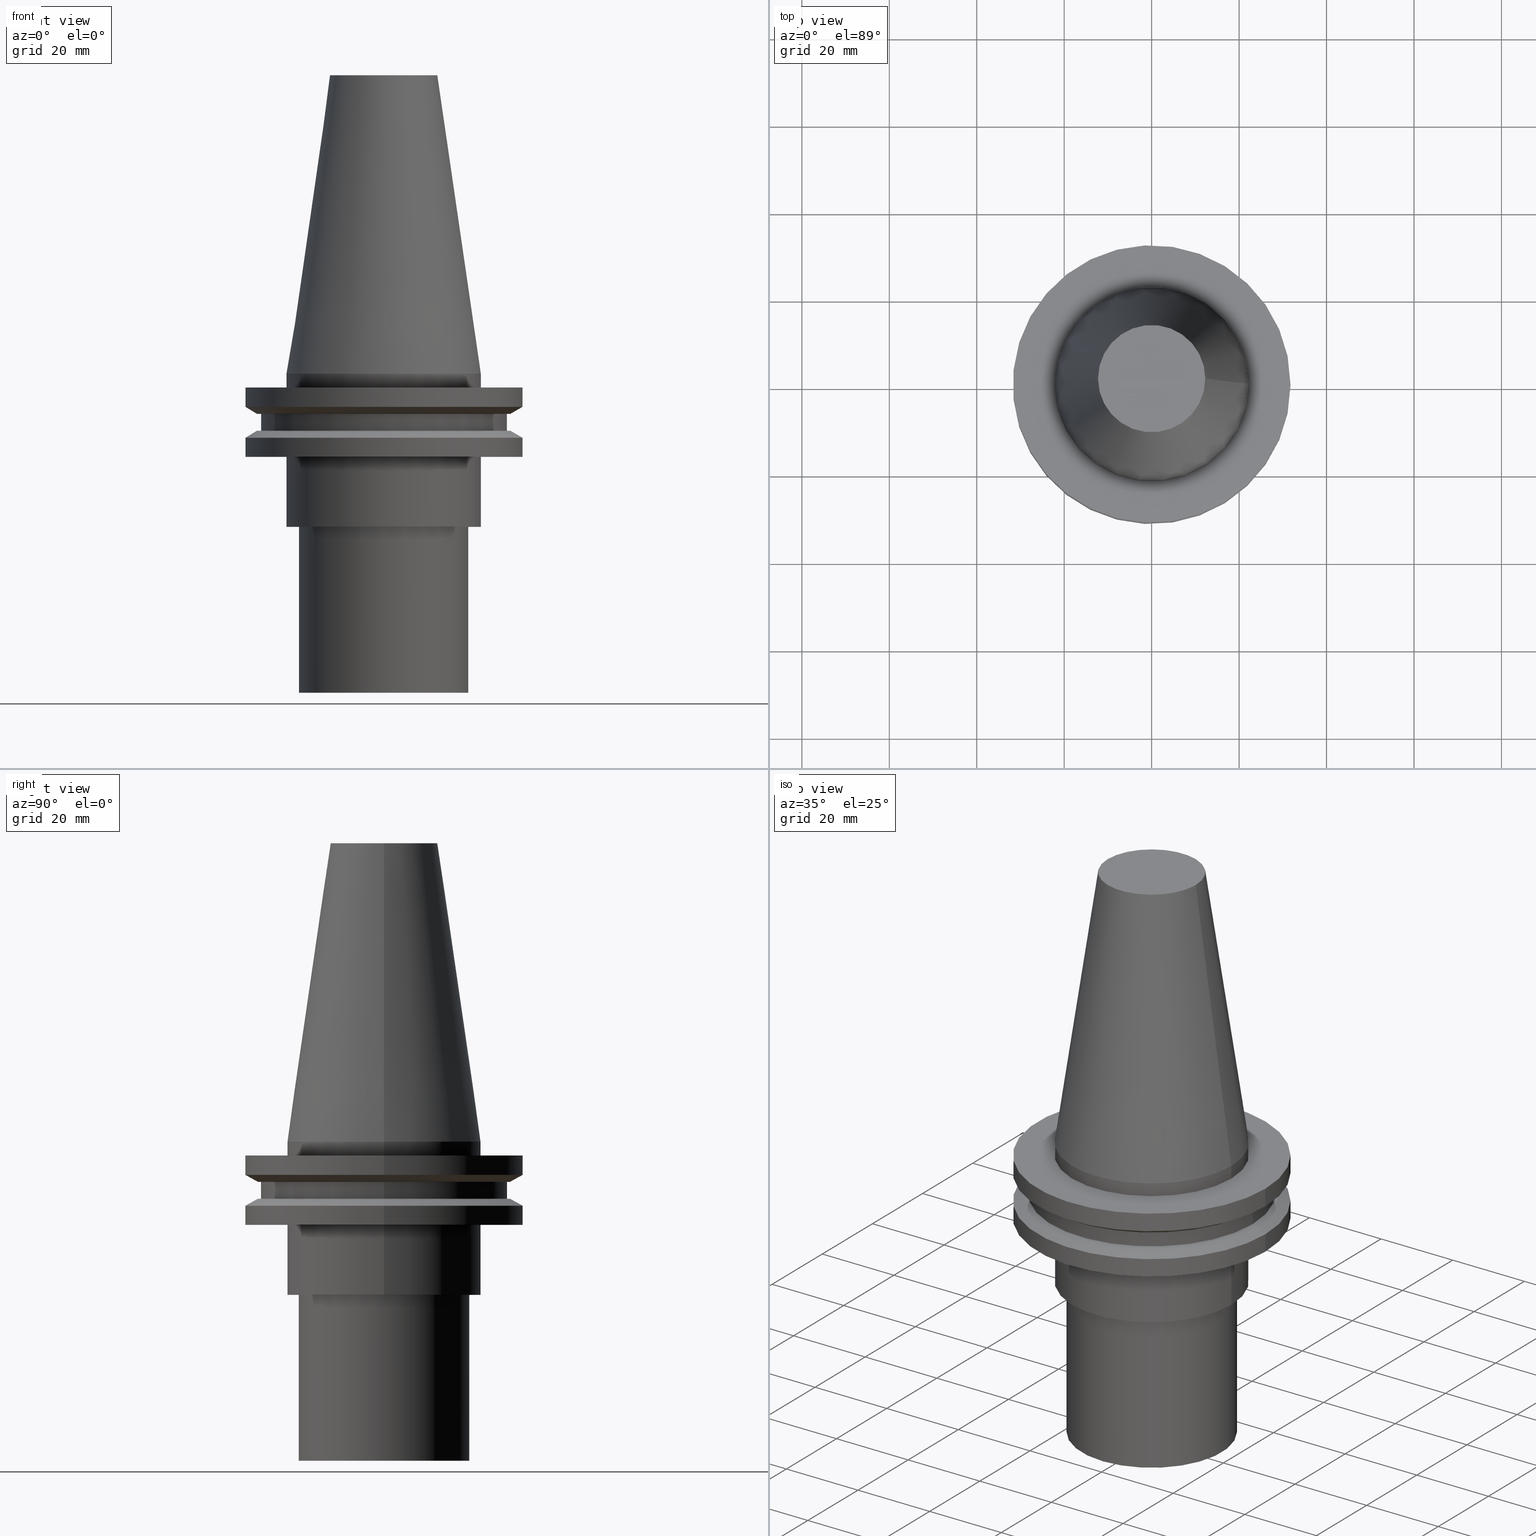
[diagram: canonical four-view strip — front | top / right | iso, engineering-drawing reading convention]
A machine part, canonical four-view strip (front | top / right | iso — engineering-drawing reading convention). The complete STEP part file that produces these views, byte-faithful:
ISO-10303-21;
HEADER;
FILE_DESCRIPTION (( 'STEP AP203' ),
    '1' );
FILE_NAME ('11.368.441.stp',
    '2022-03-09T15:12:56',
    ( '' ),
    ( '' ),
    'SwSTEP 2.0',
    'SolidWorks 2021',
    '' );
FILE_SCHEMA (( 'CONFIG_CONTROL_DESIGN' ));
ENDSEC;

DATA;
#1 = CIRCLE ( 'NONE', #285, 31.74999999999999289 ) ;
#2 = CALENDAR_DATE ( 2022, 9, 3 ) ;
#3 = AXIS2_PLACEMENT_3D ( 'NONE', #68, #358, #189 ) ;
#4 = COORDINATED_UNIVERSAL_TIME_OFFSET ( 6, 0, .BEHIND. ) ;
#5 = ORIENTED_EDGE ( 'NONE', *, *, #313, .F. ) ;
#6 = EDGE_LOOP ( 'NONE', ( #105 ) ) ;
#7 = APPROVAL_DATE_TIME ( #38, #206 ) ;
#8 = EDGE_CURVE ( 'NONE', #90, #90, #22, .T. ) ;
#9 = FACE_BOUND ( 'NONE', #70, .T. ) ;
#10 = AXIS2_PLACEMENT_3D ( 'NONE', #80, #238, #266 ) ;
#11 = EDGE_LOOP ( 'NONE', ( #226 ) ) ;
#12 = PLANE ( 'NONE',  #259 ) ;
#13 = PRODUCT_DEFINITION ( 'UNKNOWN', '', #389, #41 ) ;
#14 = FACE_BOUND ( 'NONE', #87, .T. ) ;
#15 = CALENDAR_DATE ( 2022, 9, 3 ) ;
#16 = FACE_BOUND ( 'NONE', #11, .T. ) ;
#17 = CYLINDRICAL_SURFACE ( 'NONE', #240, 19.50000000000000000 ) ;
#18 = ADVANCED_FACE ( 'NONE', ( #14, #267 ), #134, .T. ) ;
#19 = DATE_AND_TIME ( #15, #371 ) ;
#20 = DIRECTION ( 'NONE',  ( 1.000000000000000000, 0.000000000000000000, 0.000000000000000000 ) ) ;
#21 = CARTESIAN_POINT ( 'NONE',  ( 0.000000000000000000, 0.000000000000000000, -9.204999999999991189 ) ) ;
#22 = CIRCLE ( 'NONE', #43, 31.75000000000000000 ) ;
#23 = CARTESIAN_POINT ( 'NONE',  ( 31.75000000000000000, 0.000000000000000000, -3.174999999999997158 ) ) ;
#24 = PLANE ( 'NONE',  #272 ) ;
#25 = PERSON_AND_ORGANIZATION ( #33, #395 ) ;
#26 = VERTEX_POINT ( 'NONE', #305 ) ;
#27 = CARTESIAN_POINT ( 'NONE',  ( 0.000000000000000000, 28.17999999999999972, -13.05499999999999794 ) ) ;
#28 = COORDINATED_UNIVERSAL_TIME_OFFSET ( 6, 0, .BEHIND. ) ;
#29 = CARTESIAN_POINT ( 'NONE',  ( 28.17999999999999972, 0.000000000000000000, -13.05499999999999794 ) ) ;
#30 = DIRECTION ( 'NONE',  ( -0.000000000000000000, 3.227000788267069691E-17, -1.000000000000000000 ) ) ;
#31 = CIRCLE ( 'NONE', #307, 19.50000000000000000 ) ;
#32 = VERTEX_POINT ( 'NONE', #221 ) ;
#33 = PERSON ( 'UNSPECIFIED', 'UNSPECIFIED', 'UNSPECIFIED', ('UNSPECIFIED'), ('UNSPECIFIED'), ('UNSPECIFIED') ) ;
#34 = CIRCLE ( 'NONE', #218, 28.97919780457007732 ) ;
#35 = APPROVAL_STATUS ( 'not_yet_approved' ) ;
#36 = EDGE_LOOP ( 'NONE', ( #47 ) ) ;
#37 = CIRCLE ( 'NONE', #250, 22.22500000000000142 ) ;
#38 = DATE_AND_TIME ( #373, #258 ) ;
#39 = MANIFOLD_SOLID_BREP ( 'CKB', #343 ) ;
#40 = CALENDAR_DATE ( 2022, 9, 3 ) ;
#41 = DESIGN_CONTEXT ( 'detailed design', #124, 'design' ) ;
#42 = CC_DESIGN_PERSON_AND_ORGANIZATION_ASSIGNMENT ( #394, #62, ( #193 ) ) ;
#43 = AXIS2_PLACEMENT_3D ( 'NONE', #229, #55, #353 ) ;
#44 = ORIENTED_EDGE ( 'NONE', *, *, #8, .T. ) ;
#45 = CC_DESIGN_APPROVAL ( #270, ( #158 ) ) ;
#46 = DIRECTION ( 'NONE',  ( 1.000000000000000000, 0.000000000000000000, 0.000000000000000000 ) ) ;
#47 = ORIENTED_EDGE ( 'NONE', *, *, #303, .T. ) ;
#48 = DIRECTION ( 'NONE',  ( -0.000000000000000000, -0.000000000000000000, 1.000000000000000000 ) ) ;
#49 = ORIENTED_EDGE ( 'NONE', *, *, #339, .F. ) ;
#50 = DIRECTION ( 'NONE',  ( 1.000000000000000000, 0.000000000000000000, 0.000000000000000000 ) ) ;
#51 = EDGE_LOOP ( 'NONE', ( #291 ) ) ;
#52 = DATE_TIME_ROLE ( 'classification_date' ) ;
#53 = DIRECTION ( 'NONE',  ( 1.000000000000000000, 0.000000000000000000, 0.000000000000000000 ) ) ;
#54 = LOCAL_TIME ( 9, 12, 56.00000000000000000, #320 ) ;
#55 = DIRECTION ( 'NONE',  ( -0.000000000000000000, -0.000000000000000000, 1.000000000000000000 ) ) ;
#56 = DIRECTION ( 'NONE',  ( -0.000000000000000000, -0.000000000000000000, 1.000000000000000000 ) ) ;
#57 = CARTESIAN_POINT ( 'NONE',  ( 0.000000000000000000, 0.000000000000000000, -13.05499999999999794 ) ) ;
#58 = AXIS2_PLACEMENT_3D ( 'NONE', #364, #274, #391 ) ;
#59 = APPROVAL_STATUS ( 'not_yet_approved' ) ;
#60 = DIRECTION ( 'NONE',  ( 0.000000000000000000, 1.000000000000000000, 0.000000000000000000 ) ) ;
#61 = ADVANCED_FACE ( 'NONE', ( #208, #324 ), #17, .T. ) ;
#62 = PERSON_AND_ORGANIZATION_ROLE ( 'design_owner' ) ;
#63 = AXIS2_PLACEMENT_3D ( 'NONE', #174, #323, #380 ) ;
#64 = DIRECTION ( 'NONE',  ( 1.000000000000000000, 0.000000000000000000, 0.000000000000000000 ) ) ;
#65 = VERTEX_POINT ( 'NONE', #390 ) ;
#66 = CARTESIAN_POINT ( 'NONE',  ( 0.000000000000000000, 22.22499999999999787, -35.04999999999999716 ) ) ;
#67 = CONICAL_SURFACE ( 'NONE', #230, 22.22500000000000142, 0.1448138465474119174 ) ;
#68 = CARTESIAN_POINT ( 'NONE',  ( 0.000000000000000000, 0.000000000000000000, 68.25000000000000000 ) ) ;
#69 = PRODUCT_DEFINITION_SHAPE ( 'NONE', 'NONE',  #13 ) ;
#70 = EDGE_LOOP ( 'NONE', ( #223 ) ) ;
#71 = AXIS2_PLACEMENT_3D ( 'NONE', #116, #118, #82 ) ;
#72 = APPROVAL_DATE_TIME ( #76, #340 ) ;
#73 = CIRCLE ( 'NONE', #311, 28.17999999999999972 ) ;
#74 = AXIS2_PLACEMENT_3D ( 'NONE', #99, #276, #60 ) ;
#75 = FACE_OUTER_BOUND ( 'NONE', #141, .T. ) ;
#76 = DATE_AND_TIME ( #2, #314 ) ;
#77 = CYLINDRICAL_SURFACE ( 'NONE', #3, 31.75000000000000000 ) ;
#78 = ORIENTED_EDGE ( 'NONE', *, *, #168, .T. ) ;
#79 = CC_DESIGN_APPROVAL ( #206, ( #13 ) ) ;
#80 = CARTESIAN_POINT ( 'NONE',  ( 0.000000000000000000, 0.000000000000000000, -19.04999999999999716 ) ) ;
#81 = EDGE_LOOP ( 'NONE', ( #381 ) ) ;
#82 = DIRECTION ( 'NONE',  ( -1.000000000000000000, 0.000000000000000000, -0.000000000000000000 ) ) ;
#83 = AXIS2_PLACEMENT_3D ( 'NONE', #213, #184, #335 ) ;
#84 = ORIENTED_EDGE ( 'NONE', *, *, #190, .F. ) ;
#85 = APPROVAL_ROLE ( '' ) ;
#86 = CYLINDRICAL_SURFACE ( 'NONE', #101, 22.22500000000000142 ) ;
#87 = EDGE_LOOP ( 'NONE', ( #287 ) ) ;
#88 = DIRECTION ( 'NONE',  ( -0.000000000000000000, -0.000000000000000000, 1.000000000000000000 ) ) ;
#89 = DIRECTION ( 'NONE',  ( -0.000000000000000000, -0.000000000000000000, 1.000000000000000000 ) ) ;
#90 = VERTEX_POINT ( 'NONE', #165 ) ;
#91 = PLANE ( 'NONE',  #293 ) ;
#92 = ADVANCED_FACE ( 'NONE', ( #383, #75 ), #200, .T. ) ;
#93 = CONICAL_SURFACE ( 'NONE', #384, 28.97919780457007732, 1.047197551196598297 ) ;
#94 = COORDINATED_UNIVERSAL_TIME_OFFSET ( 6, 0, .BEHIND. ) ;
#95 = CARTESIAN_POINT ( 'NONE',  ( 0.000000000000000000, 19.50000000000000000, -35.04999999999999716 ) ) ;
#96 = FACE_BOUND ( 'NONE', #6, .T. ) ;
#97 = ADVANCED_FACE ( 'NONE', ( #386, #251 ), #91, .F. ) ;
#98 = MECHANICAL_CONTEXT ( 'NONE', #107, 'mechanical' ) ;
#99 = CARTESIAN_POINT ( 'NONE',  ( 0.000000000000000000, 1.224646799147352862E-15, -73.00000000000000000 ) ) ;
#100 = CARTESIAN_POINT ( 'NONE',  ( 22.22500000000000142, 0.000000000000000000, 0.000000000000000000 ) ) ;
#101 = AXIS2_PLACEMENT_3D ( 'NONE', #209, #325, #290 ) ;
#102 = ORIENTED_EDGE ( 'NONE', *, *, #168, .F. ) ;
#103 = PERSON_AND_ORGANIZATION_ROLE ( 'design_supplier' ) ;
#104 = CC_DESIGN_SECURITY_CLASSIFICATION ( #158, ( #389 ) ) ;
#105 = ORIENTED_EDGE ( 'NONE', *, *, #130, .F. ) ;
#106 = EDGE_CURVE ( 'NONE', #219, #219, #31, .T. ) ;
#107 = APPLICATION_CONTEXT ( 'configuration controlled 3d designs of mechanical parts and assemblies' ) ;
#108 = DIRECTION ( 'NONE',  ( 0.000000000000000000, 0.000000000000000000, -1.000000000000000000 ) ) ;
#109 = AXIS2_PLACEMENT_3D ( 'NONE', #220, #245, #64 ) ;
#110 = DIRECTION ( 'NONE',  ( -0.000000000000000000, -0.000000000000000000, 1.000000000000000000 ) ) ;
#111 = EDGE_LOOP ( 'NONE', ( #145 ) ) ;
#112 = FACE_OUTER_BOUND ( 'NONE', #173, .T. ) ;
#113 = EDGE_LOOP ( 'NONE', ( #5 ) ) ;
#114 = PERSON_AND_ORGANIZATION_ROLE ( 'creator' ) ;
#115 = APPROVAL_PERSON_ORGANIZATION ( #350, #340, #345 ) ;
#116 = CARTESIAN_POINT ( 'NONE',  ( 0.000000000000000000, 12.27178102086201150, 68.25000000000000000 ) ) ;
#117 = EDGE_LOOP ( 'NONE', ( #261 ) ) ;
#118 = DIRECTION ( 'NONE',  ( 0.000000000000000000, 0.000000000000000000, -1.000000000000000000 ) ) ;
#119 = AXIS2_PLACEMENT_3D ( 'NONE', #253, #299, #155 ) ;
#120 = EDGE_LOOP ( 'NONE', ( #349 ) ) ;
#121 = PERSON_AND_ORGANIZATION_ROLE ( 'classification_officer' ) ;
#122 = DIRECTION ( 'NONE',  ( -1.000000000000000000, 0.000000000000000000, -0.000000000000000000 ) ) ;
#123 = DIRECTION ( 'NONE',  ( 0.000000000000000000, 1.000000000000000000, 0.000000000000000000 ) ) ;
#124 = APPLICATION_CONTEXT ( 'configuration controlled 3d designs of mechanical parts and assemblies' ) ;
#125 = DIRECTION ( 'NONE',  ( -0.000000000000000000, 3.227000788267069691E-17, -1.000000000000000000 ) ) ;
#126 = CARTESIAN_POINT ( 'NONE',  ( 12.27178102086201150, 0.000000000000000000, 68.25000000000000000 ) ) ;
#127 = PLANE ( 'NONE',  #109 ) ;
#128 = VERTEX_POINT ( 'NONE', #156 ) ;
#129 = DIRECTION ( 'NONE',  ( 0.000000000000000000, 0.000000000000000000, -1.000000000000000000 ) ) ;
#130 = EDGE_CURVE ( 'NONE', #387, #387, #256, .T. ) ;
#131 = VERTEX_POINT ( 'NONE', #365 ) ;
#132 = ADVANCED_BREP_SHAPE_REPRESENTATION ( '11.368.441', ( #39, #178 ), #288 ) ;
#133 = CARTESIAN_POINT ( 'NONE',  ( 0.000000000000000000, 0.000000000000000000, 0.000000000000000000 ) ) ;
#134 = CONICAL_SURFACE ( 'NONE', #170, 31.75000000000000000, 1.047197551196597853 ) ;
#135 = EDGE_LOOP ( 'NONE', ( #379 ) ) ;
#136 = ORIENTED_EDGE ( 'NONE', *, *, #190, .T. ) ;
#137 = CIRCLE ( 'NONE', #222, 28.97919780457008088 ) ;
#138 = EDGE_LOOP ( 'NONE', ( #297 ) ) ;
#139 = AXIS2_PLACEMENT_3D ( 'NONE', #273, #385, #122 ) ;
#140 = DIRECTION ( 'NONE',  ( -0.000000000000000000, -0.000000000000000000, 1.000000000000000000 ) ) ;
#141 = EDGE_LOOP ( 'NONE', ( #376 ) ) ;
#142 = SECURITY_CLASSIFICATION_LEVEL ( 'unclassified' ) ;
#143 = AXIS2_PLACEMENT_3D ( 'NONE', #295, #110, #262 ) ;
#144 = FACE_OUTER_BOUND ( 'NONE', #342, .T. ) ;
#145 = ORIENTED_EDGE ( 'NONE', *, *, #268, .F. ) ;
#146 = DATE_TIME_ROLE ( 'creation_date' ) ;
#147 = CARTESIAN_POINT ( 'NONE',  ( 0.000000000000000000, 0.000000000000000000, 68.25000000000000000 ) ) ;
#148 = EDGE_LOOP ( 'NONE', ( #49 ) ) ;
#149 = APPROVAL_DATE_TIME ( #363, #270 ) ;
#150 = DIRECTION ( 'NONE',  ( -0.000000000000000000, -0.000000000000000000, 1.000000000000000000 ) ) ;
#151 = EDGE_CURVE ( 'NONE', #131, #131, #137, .T. ) ;
#152 = CARTESIAN_POINT ( 'NONE',  ( 0.000000000000000000, 1.224646799147352862E-15, -73.00000000000000000 ) ) ;
#153 = PLANE ( 'NONE',  #139 ) ;
#154 = AXIS2_PLACEMENT_3D ( 'NONE', #27, #129, #217 ) ;
#155 = DIRECTION ( 'NONE',  ( 1.000000000000000000, 0.000000000000000000, 0.000000000000000000 ) ) ;
#156 = CARTESIAN_POINT ( 'NONE',  ( 22.22499999999999787, 0.000000000000000000, -35.04999999999999716 ) ) ;
#157 = CARTESIAN_POINT ( 'NONE',  ( 0.000000000000000000, 19.50000000000000000, -73.00000000000000000 ) ) ;
#158 = SECURITY_CLASSIFICATION ( '', '', #142 ) ;
#159 = FACE_OUTER_BOUND ( 'NONE', #148, .T. ) ;
#160 = PERSON_AND_ORGANIZATION ( #33, #395 ) ;
#161 = CARTESIAN_POINT ( 'NONE',  ( 0.000000000000000000, 0.000000000000000000, 0.000000000000000000 ) ) ;
#162 =( NAMED_UNIT ( * ) PLANE_ANGLE_UNIT ( ) SI_UNIT ( $, .RADIAN. ) );
#163 = CC_DESIGN_DATE_AND_TIME_ASSIGNMENT ( #19, #52, ( #158 ) ) ;
#164 = CC_DESIGN_PERSON_AND_ORGANIZATION_ASSIGNMENT ( #292, #234, ( #13 ) ) ;
#165 = CARTESIAN_POINT ( 'NONE',  ( 31.75000000000000000, 0.000000000000000000, -14.65472339340266572 ) ) ;
#166 = CIRCLE ( 'NONE', #336, 28.17999999999999972 ) ;
#167 = ADVANCED_FACE ( 'NONE', ( #188 ), #24, .T. ) ;
#168 = EDGE_CURVE ( 'NONE', #361, #361, #166, .T. ) ;
#169 = EDGE_CURVE ( 'NONE', #194, #194, #37, .T. ) ;
#170 = AXIS2_PLACEMENT_3D ( 'NONE', #372, #108, #355 ) ;
#171 = ORIENTED_EDGE ( 'NONE', *, *, #227, .T. ) ;
#172 = DIRECTION ( 'NONE',  ( -0.000000000000000000, -0.000000000000000000, 1.000000000000000000 ) ) ;
#173 = EDGE_LOOP ( 'NONE', ( #102 ) ) ;
#174 = CARTESIAN_POINT ( 'NONE',  ( 0.000000000000000000, 0.000000000000000000, -7.605276606597335842 ) ) ;
#175 = ORIENTED_EDGE ( 'NONE', *, *, #169, .F. ) ;
#176 = FACE_OUTER_BOUND ( 'NONE', #117, .T. ) ;
#177 = EDGE_LOOP ( 'NONE', ( #319 ) ) ;
#178 = AXIS2_PLACEMENT_3D ( 'NONE', #133, #255, #367 ) ;
#179 = FACE_OUTER_BOUND ( 'NONE', #120, .T. ) ;
#180 = DIRECTION ( 'NONE',  ( 1.000000000000000000, 0.000000000000000000, 0.000000000000000000 ) ) ;
#181 = FACE_OUTER_BOUND ( 'NONE', #242, .T. ) ;
#182 = AXIS2_PLACEMENT_3D ( 'NONE', #321, #48, #53 ) ;
#183 = PRODUCT_RELATED_PRODUCT_CATEGORY ( 'detail', '', ( #193 ) ) ;
#184 = DIRECTION ( 'NONE',  ( -0.000000000000000000, -0.000000000000000000, 1.000000000000000000 ) ) ;
#185 =( LENGTH_UNIT ( ) NAMED_UNIT ( * ) SI_UNIT ( .MILLI., .METRE. ) );
#186 = FACE_BOUND ( 'NONE', #177, .T. ) ;
#187 = APPLICATION_PROTOCOL_DEFINITION ( 'international standard', 'config_control_design', 1994, #124 ) ;
#188 = FACE_OUTER_BOUND ( 'NONE', #211, .T. ) ;
#189 = DIRECTION ( 'NONE',  ( 1.000000000000000000, 0.000000000000000000, 0.000000000000000000 ) ) ;
#190 = EDGE_CURVE ( 'NONE', #65, #65, #360, .T. ) ;
#191 = CIRCLE ( 'NONE', #10, 22.22500000000000142 ) ;
#192 = CARTESIAN_POINT ( 'NONE',  ( 28.17999999999999972, 0.000000000000000000, -9.204999999999991189 ) ) ;
#193 = PRODUCT ( '11.368.441', '11.368.441', '', ( #98 ) ) ;
#194 = VERTEX_POINT ( 'NONE', #100 ) ;
#195 = EDGE_LOOP ( 'NONE', ( #175 ) ) ;
#196 = CIRCLE ( 'NONE', #63, 31.75000000000000000 ) ;
#197 = CC_DESIGN_DATE_AND_TIME_ASSIGNMENT ( #286, #146, ( #13 ) ) ;
#198 = ADVANCED_FACE ( 'NONE', ( #96, #215 ), #67, .T. ) ;
#199 = EDGE_LOOP ( 'NONE', ( #233 ) ) ;
#200 = CYLINDRICAL_SURFACE ( 'NONE', #58, 31.75000000000000000 ) ;
#201 = PERSON_AND_ORGANIZATION ( #33, #395 ) ;
#202 = FACE_OUTER_BOUND ( 'NONE', #135, .T. ) ;
#203 = EDGE_LOOP ( 'NONE', ( #260 ) ) ;
#204 = DIRECTION ( 'NONE',  ( 1.000000000000000000, 0.000000000000000000, 0.000000000000000000 ) ) ;
#205 = EDGE_LOOP ( 'NONE', ( #289 ) ) ;
#206 = APPROVAL ( #280, 'UNSPECIFIED' ) ;
#207 = CARTESIAN_POINT ( 'NONE',  ( 0.000000000000000000, 0.000000000000000000, -9.205000000000005400 ) ) ;
#208 = FACE_OUTER_BOUND ( 'NONE', #51, .T. ) ;
#209 = CARTESIAN_POINT ( 'NONE',  ( 0.000000000000000000, 0.000000000000000000, 68.25000000000000000 ) ) ;
#210 = ADVANCED_FACE ( 'NONE', ( #186, #304 ), #393, .F. ) ;
#211 = EDGE_LOOP ( 'NONE', ( #136 ) ) ;
#212 = DIRECTION ( 'NONE',  ( 1.000000000000000000, 0.000000000000000000, 0.000000000000000000 ) ) ;
#213 = CARTESIAN_POINT ( 'NONE',  ( 0.000000000000000000, 0.000000000000000000, 68.25000000000000000 ) ) ;
#214 = VERTEX_POINT ( 'NONE', #337 ) ;
#215 = FACE_OUTER_BOUND ( 'NONE', #203, .T. ) ;
#216 = SHAPE_DEFINITION_REPRESENTATION ( #69, #132 ) ;
#217 = DIRECTION ( 'NONE',  ( -1.000000000000000000, 0.000000000000000000, -0.000000000000000000 ) ) ;
#218 = AXIS2_PLACEMENT_3D ( 'NONE', #207, #318, #269 ) ;
#219 = VERTEX_POINT ( 'NONE', #95 ) ;
#220 = CARTESIAN_POINT ( 'NONE',  ( 0.000000000000000000, 28.97919780457007732, -9.204999999999996518 ) ) ;
#221 = CARTESIAN_POINT ( 'NONE',  ( 22.22500000000000142, 0.000000000000000000, -19.04999999999999716 ) ) ;
#222 = AXIS2_PLACEMENT_3D ( 'NONE', #57, #359, #388 ) ;
#223 = ORIENTED_EDGE ( 'NONE', *, *, #268, .T. ) ;
#224 = LOCAL_TIME ( 9, 12, 56.00000000000000000, #28 ) ;
#225 = ADVANCED_FACE ( 'NONE', ( #159, #279 ), #127, .F. ) ;
#226 = ORIENTED_EDGE ( 'NONE', *, *, #339, .T. ) ;
#227 = EDGE_CURVE ( 'NONE', #254, #254, #329, .T. ) ;
#228 = APPROVAL_PERSON_ORGANIZATION ( #160, #206, #392 ) ;
#229 = CARTESIAN_POINT ( 'NONE',  ( 0.000000000000000000, 0.000000000000000000, -14.65472339340266572 ) ) ;
#230 = AXIS2_PLACEMENT_3D ( 'NONE', #328, #248, #331 ) ;
#231 = CARTESIAN_POINT ( 'NONE',  ( 0.000000000000000000, 0.000000000000000000, -19.04999999999999716 ) ) ;
#232 = ADVANCED_FACE ( 'NONE', ( #144, #9 ), #12, .F. ) ;
#233 = ORIENTED_EDGE ( 'NONE', *, *, #130, .T. ) ;
#234 = PERSON_AND_ORGANIZATION_ROLE ( 'creator' ) ;
#235 = CARTESIAN_POINT ( 'NONE',  ( 0.000000000000000000, 0.000000000000000000, -9.205000000000005400 ) ) ;
#236 = ADVANCED_FACE ( 'NONE', ( #301, #16 ), #93, .T. ) ;
#237 = ORIENTED_EDGE ( 'NONE', *, *, #282, .F. ) ;
#238 = DIRECTION ( 'NONE',  ( -0.000000000000000000, -0.000000000000000000, 1.000000000000000000 ) ) ;
#239 = ORIENTED_EDGE ( 'NONE', *, *, #303, .F. ) ;
#240 = AXIS2_PLACEMENT_3D ( 'NONE', #152, #326, #271 ) ;
#241 = CYLINDRICAL_SURFACE ( 'NONE', #316, 28.17999999999999972 ) ;
#242 = EDGE_LOOP ( 'NONE', ( #171 ) ) ;
#243 = PERSON_AND_ORGANIZATION ( #33, #395 ) ;
#244 = FACE_OUTER_BOUND ( 'NONE', #195, .T. ) ;
#245 = DIRECTION ( 'NONE',  ( 0.000000000000000000, -0.000000000000000000, 1.000000000000000000 ) ) ;
#246 = AXIS2_PLACEMENT_3D ( 'NONE', #356, #88, #212 ) ;
#247 = CC_DESIGN_PERSON_AND_ORGANIZATION_ASSIGNMENT ( #25, #121, ( #158 ) ) ;
#248 = DIRECTION ( 'NONE',  ( 0.000000000000000000, 0.000000000000000000, -1.000000000000000000 ) ) ;
#249 = CALENDAR_DATE ( 2022, 9, 3 ) ;
#250 = AXIS2_PLACEMENT_3D ( 'NONE', #161, #89, #333 ) ;
#251 = FACE_OUTER_BOUND ( 'NONE', #317, .T. ) ;
#252 = ADVANCED_FACE ( 'NONE', ( #352, #377 ), #86, .T. ) ;
#253 = CARTESIAN_POINT ( 'NONE',  ( 0.000000000000000000, 0.000000000000000000, -3.174999999999997158 ) ) ;
#254 = VERTEX_POINT ( 'NONE', #308 ) ;
#255 = DIRECTION ( 'NONE',  ( 0.000000000000000000, 0.000000000000000000, 1.000000000000000000 ) ) ;
#256 = CIRCLE ( 'NONE', #83, 12.27178102086201150 ) ;
#257 = PERSON_AND_ORGANIZATION ( #33, #395 ) ;
#258 = LOCAL_TIME ( 9, 12, 56.00000000000000000, #334 ) ;
#259 = AXIS2_PLACEMENT_3D ( 'NONE', #264, #296, #348 ) ;
#260 = ORIENTED_EDGE ( 'NONE', *, *, #169, .T. ) ;
#261 = ORIENTED_EDGE ( 'NONE', *, *, #341, .T. ) ;
#262 = DIRECTION ( 'NONE',  ( 1.000000000000000000, 0.000000000000000000, 0.000000000000000000 ) ) ;
#263 = EDGE_LOOP ( 'NONE', ( #78 ) ) ;
#264 = CARTESIAN_POINT ( 'NONE',  ( 0.000000000000000000, 31.74999999999999289, -19.04999999999999716 ) ) ;
#265 = EDGE_LOOP ( 'NONE', ( #368 ) ) ;
#266 = DIRECTION ( 'NONE',  ( 1.000000000000000000, 0.000000000000000000, 0.000000000000000000 ) ) ;
#267 = FACE_OUTER_BOUND ( 'NONE', #322, .T. ) ;
#268 = EDGE_CURVE ( 'NONE', #32, #32, #191, .T. ) ;
#269 = DIRECTION ( 'NONE',  ( 1.000000000000000000, 0.000000000000000000, 0.000000000000000000 ) ) ;
#270 = APPROVAL ( #59, 'UNSPECIFIED' ) ;
#271 = DIRECTION ( 'NONE',  ( 0.000000000000000000, 1.000000000000000000, 0.000000000000000000 ) ) ;
#272 = AXIS2_PLACEMENT_3D ( 'NONE', #157, #30, #281 ) ;
#273 = CARTESIAN_POINT ( 'NONE',  ( 0.000000000000000000, 31.75000000000000000, -3.174999999999999378 ) ) ;
#274 = DIRECTION ( 'NONE',  ( -0.000000000000000000, -0.000000000000000000, 1.000000000000000000 ) ) ;
#275 = VERTEX_POINT ( 'NONE', #23 ) ;
#276 = DIRECTION ( 'NONE',  ( -0.000000000000000000, 3.227000788267069691E-17, -1.000000000000000000 ) ) ;
#277 = APPROVAL_PERSON_ORGANIZATION ( #243, #270, #85 ) ;
#278 = ADVANCED_FACE ( 'NONE', ( #112, #176 ), #241, .T. ) ;
#279 = FACE_BOUND ( 'NONE', #263, .T. ) ;
#280 = APPROVAL_STATUS ( 'not_yet_approved' ) ;
#281 = DIRECTION ( 'NONE',  ( 0.000000000000000000, 1.000000000000000000, 3.227000788267069691E-17 ) ) ;
#282 = EDGE_CURVE ( 'NONE', #128, #128, #300, .T. ) ;
#283 = CC_DESIGN_APPROVAL ( #340, ( #389 ) ) ;
#284 =( NAMED_UNIT ( * ) SI_UNIT ( $, .STERADIAN. ) SOLID_ANGLE_UNIT ( ) );
#285 = AXIS2_PLACEMENT_3D ( 'NONE', #231, #140, #20 ) ;
#286 = DATE_AND_TIME ( #40, #54 ) ;
#287 = ORIENTED_EDGE ( 'NONE', *, *, #151, .F. ) ;
#288 =( GEOMETRIC_REPRESENTATION_CONTEXT ( 3 ) GLOBAL_UNCERTAINTY_ASSIGNED_CONTEXT ( ( #294 ) ) GLOBAL_UNIT_ASSIGNED_CONTEXT ( ( #185, #162, #284 ) ) REPRESENTATION_CONTEXT ( 'NONE', 'WORKASPACE' ) );
#289 = ORIENTED_EDGE ( 'NONE', *, *, #106, .F. ) ;
#290 = DIRECTION ( 'NONE',  ( 1.000000000000000000, 0.000000000000000000, 0.000000000000000000 ) ) ;
#291 = ORIENTED_EDGE ( 'NONE', *, *, #106, .T. ) ;
#292 = PERSON_AND_ORGANIZATION ( #33, #395 ) ;
#293 = AXIS2_PLACEMENT_3D ( 'NONE', #66, #357, #306 ) ;
#294 = UNCERTAINTY_MEASURE_WITH_UNIT (LENGTH_MEASURE( 1.000000000000000082E-05 ), #185, 'distance_accuracy_value', 'NONE');
#295 = CARTESIAN_POINT ( 'NONE',  ( 0.000000000000000000, 0.000000000000000000, -3.174999999999997158 ) ) ;
#296 = DIRECTION ( 'NONE',  ( 0.000000000000000000, -0.000000000000000000, 1.000000000000000000 ) ) ;
#297 = ORIENTED_EDGE ( 'NONE', *, *, #151, .T. ) ;
#298 = PLANE ( 'NONE',  #71 ) ;
#299 = DIRECTION ( 'NONE',  ( -0.000000000000000000, -0.000000000000000000, 1.000000000000000000 ) ) ;
#300 = CIRCLE ( 'NONE', #182, 22.22499999999999787 ) ;
#301 = FACE_OUTER_BOUND ( 'NONE', #113, .T. ) ;
#302 = CARTESIAN_POINT ( 'NONE',  ( 0.000000000000000000, 0.000000000000000000, -35.04999999999999716 ) ) ;
#303 = EDGE_CURVE ( 'NONE', #26, #26, #1, .T. ) ;
#304 = FACE_OUTER_BOUND ( 'NONE', #138, .T. ) ;
#305 = CARTESIAN_POINT ( 'NONE',  ( 31.74999999999999289, 0.000000000000000000, -19.04999999999999716 ) ) ;
#306 = DIRECTION ( 'NONE',  ( 1.000000000000000000, 0.000000000000000000, 0.000000000000000000 ) ) ;
#307 = AXIS2_PLACEMENT_3D ( 'NONE', #302, #125, #123 ) ;
#308 = CARTESIAN_POINT ( 'NONE',  ( 22.22500000000000142, 0.000000000000000000, -3.174999999999997158 ) ) ;
#309 = EDGE_CURVE ( 'NONE', #275, #275, #312, .T. ) ;
#310 = CARTESIAN_POINT ( 'NONE',  ( 28.97919780457007732, 0.000000000000000000, -9.205000000000005400 ) ) ;
#311 = AXIS2_PLACEMENT_3D ( 'NONE', #382, #56, #50 ) ;
#312 = CIRCLE ( 'NONE', #143, 31.75000000000000000 ) ;
#313 = EDGE_CURVE ( 'NONE', #214, #214, #196, .T. ) ;
#314 = LOCAL_TIME ( 9, 12, 56.00000000000000000, #4 ) ;
#315 = ADVANCED_FACE ( 'NONE', ( #346 ), #298, .F. ) ;
#316 = AXIS2_PLACEMENT_3D ( 'NONE', #147, #172, #204 ) ;
#317 = EDGE_LOOP ( 'NONE', ( #237 ) ) ;
#318 = DIRECTION ( 'NONE',  ( -0.000000000000000000, -0.000000000000000000, 1.000000000000000000 ) ) ;
#319 = ORIENTED_EDGE ( 'NONE', *, *, #341, .F. ) ;
#320 = COORDINATED_UNIVERSAL_TIME_OFFSET ( 6, 0, .BEHIND. ) ;
#321 = CARTESIAN_POINT ( 'NONE',  ( 0.000000000000000000, 0.000000000000000000, -35.04999999999999716 ) ) ;
#322 = EDGE_LOOP ( 'NONE', ( #44 ) ) ;
#323 = DIRECTION ( 'NONE',  ( -0.000000000000000000, -0.000000000000000000, 1.000000000000000000 ) ) ;
#324 = FACE_OUTER_BOUND ( 'NONE', #369, .T. ) ;
#325 = DIRECTION ( 'NONE',  ( -0.000000000000000000, -0.000000000000000000, 1.000000000000000000 ) ) ;
#326 = DIRECTION ( 'NONE',  ( -0.000000000000000000, 3.227000788267069691E-17, -1.000000000000000000 ) ) ;
#327 = FACE_OUTER_BOUND ( 'NONE', #36, .T. ) ;
#328 = CARTESIAN_POINT ( 'NONE',  ( 0.000000000000000000, 0.000000000000000000, 0.000000000000000000 ) ) ;
#329 = CIRCLE ( 'NONE', #119, 22.22500000000000142 ) ;
#330 = VERTEX_POINT ( 'NONE', #310 ) ;
#331 = DIRECTION ( 'NONE',  ( -1.000000000000000000, 0.000000000000000000, 0.000000000000000000 ) ) ;
#332 = APPLICATION_PROTOCOL_DEFINITION ( 'international standard', 'config_control_design', 1994, #107 ) ;
#333 = DIRECTION ( 'NONE',  ( 1.000000000000000000, 0.000000000000000000, 0.000000000000000000 ) ) ;
#334 = COORDINATED_UNIVERSAL_TIME_OFFSET ( 6, 0, .BEHIND. ) ;
#335 = DIRECTION ( 'NONE',  ( 1.000000000000000000, 0.000000000000000000, 0.000000000000000000 ) ) ;
#336 = AXIS2_PLACEMENT_3D ( 'NONE', #21, #362, #180 ) ;
#337 = CARTESIAN_POINT ( 'NONE',  ( 31.75000000000000000, 0.000000000000000000, -7.605276606597335842 ) ) ;
#338 = VERTEX_POINT ( 'NONE', #29 ) ;
#339 = EDGE_CURVE ( 'NONE', #330, #330, #34, .T. ) ;
#340 = APPROVAL ( #35, 'UNSPECIFIED' ) ;
#341 = EDGE_CURVE ( 'NONE', #338, #338, #73, .T. ) ;
#342 = EDGE_LOOP ( 'NONE', ( #239 ) ) ;
#343 = CLOSED_SHELL ( 'NONE', ( #198, #315, #97, #252, #232, #378, #18, #210, #278, #225, #236, #92, #351, #370, #61, #167 ) ) ;
#344 = ORIENTED_EDGE ( 'NONE', *, *, #227, .F. ) ;
#345 = APPROVAL_ROLE ( '' ) ;
#346 = FACE_OUTER_BOUND ( 'NONE', #199, .T. ) ;
#347 = EDGE_LOOP ( 'NONE', ( #344 ) ) ;
#348 = DIRECTION ( 'NONE',  ( 1.000000000000000000, 0.000000000000000000, 0.000000000000000000 ) ) ;
#349 = ORIENTED_EDGE ( 'NONE', *, *, #309, .T. ) ;
#350 = PERSON_AND_ORGANIZATION ( #33, #395 ) ;
#351 = ADVANCED_FACE ( 'NONE', ( #354, #179 ), #153, .F. ) ;
#352 = FACE_OUTER_BOUND ( 'NONE', #111, .T. ) ;
#353 = DIRECTION ( 'NONE',  ( 1.000000000000000000, 0.000000000000000000, 0.000000000000000000 ) ) ;
#354 = FACE_BOUND ( 'NONE', #347, .T. ) ;
#355 = DIRECTION ( 'NONE',  ( -1.000000000000000000, 0.000000000000000000, 0.000000000000000000 ) ) ;
#356 = CARTESIAN_POINT ( 'NONE',  ( 0.000000000000000000, 0.000000000000000000, 68.25000000000000000 ) ) ;
#357 = DIRECTION ( 'NONE',  ( 0.000000000000000000, -0.000000000000000000, 1.000000000000000000 ) ) ;
#358 = DIRECTION ( 'NONE',  ( -0.000000000000000000, -0.000000000000000000, 1.000000000000000000 ) ) ;
#359 = DIRECTION ( 'NONE',  ( -0.000000000000000000, -0.000000000000000000, 1.000000000000000000 ) ) ;
#360 = CIRCLE ( 'NONE', #74, 19.50000000000000000 ) ;
#361 = VERTEX_POINT ( 'NONE', #192 ) ;
#362 = DIRECTION ( 'NONE',  ( -0.000000000000000000, -0.000000000000000000, 1.000000000000000000 ) ) ;
#363 = DATE_AND_TIME ( #249, #224 ) ;
#364 = CARTESIAN_POINT ( 'NONE',  ( 0.000000000000000000, 0.000000000000000000, 68.25000000000000000 ) ) ;
#365 = CARTESIAN_POINT ( 'NONE',  ( 28.97919780457008088, 0.000000000000000000, -13.05499999999999794 ) ) ;
#366 = CC_DESIGN_PERSON_AND_ORGANIZATION_ASSIGNMENT ( #201, #114, ( #389 ) ) ;
#367 = DIRECTION ( 'NONE',  ( 1.000000000000000000, 0.000000000000000000, 0.000000000000000000 ) ) ;
#368 = ORIENTED_EDGE ( 'NONE', *, *, #309, .F. ) ;
#369 = EDGE_LOOP ( 'NONE', ( #84 ) ) ;
#370 = ADVANCED_FACE ( 'NONE', ( #244, #181 ), #375, .T. ) ;
#371 = LOCAL_TIME ( 9, 12, 56.00000000000000000, #94 ) ;
#372 = CARTESIAN_POINT ( 'NONE',  ( 0.000000000000000000, 0.000000000000000000, -14.65472339340266572 ) ) ;
#373 = CALENDAR_DATE ( 2022, 9, 3 ) ;
#374 = CC_DESIGN_PERSON_AND_ORGANIZATION_ASSIGNMENT ( #257, #103, ( #389 ) ) ;
#375 = CYLINDRICAL_SURFACE ( 'NONE', #246, 22.22500000000000142 ) ;
#376 = ORIENTED_EDGE ( 'NONE', *, *, #313, .T. ) ;
#377 = FACE_OUTER_BOUND ( 'NONE', #81, .T. ) ;
#378 = ADVANCED_FACE ( 'NONE', ( #202, #327 ), #77, .T. ) ;
#379 = ORIENTED_EDGE ( 'NONE', *, *, #8, .F. ) ;
#380 = DIRECTION ( 'NONE',  ( 1.000000000000000000, 0.000000000000000000, 0.000000000000000000 ) ) ;
#381 = ORIENTED_EDGE ( 'NONE', *, *, #282, .T. ) ;
#382 = CARTESIAN_POINT ( 'NONE',  ( 0.000000000000000000, 0.000000000000000000, -13.05499999999999794 ) ) ;
#383 = FACE_OUTER_BOUND ( 'NONE', #265, .T. ) ;
#384 = AXIS2_PLACEMENT_3D ( 'NONE', #235, #150, #46 ) ;
#385 = DIRECTION ( 'NONE',  ( 0.000000000000000000, 0.000000000000000000, -1.000000000000000000 ) ) ;
#386 = FACE_BOUND ( 'NONE', #205, .T. ) ;
#387 = VERTEX_POINT ( 'NONE', #126 ) ;
#388 = DIRECTION ( 'NONE',  ( 1.000000000000000000, 0.000000000000000000, 0.000000000000000000 ) ) ;
#389 = PRODUCT_DEFINITION_FORMATION_WITH_SPECIFIED_SOURCE ( 'ANY', '', #193, .NOT_KNOWN. ) ;
#390 = CARTESIAN_POINT ( 'NONE',  ( 0.000000000000000000, 19.50000000000000000, -73.00000000000000000 ) ) ;
#391 = DIRECTION ( 'NONE',  ( 1.000000000000000000, 0.000000000000000000, 0.000000000000000000 ) ) ;
#392 = APPROVAL_ROLE ( '' ) ;
#393 = PLANE ( 'NONE',  #154 ) ;
#394 = PERSON_AND_ORGANIZATION ( #33, #395 ) ;
#395 = ORGANIZATION ( 'UNSPECIFIED', 'UNSPECIFIED', '' ) ;
ENDSEC;
END-ISO-10303-21;
